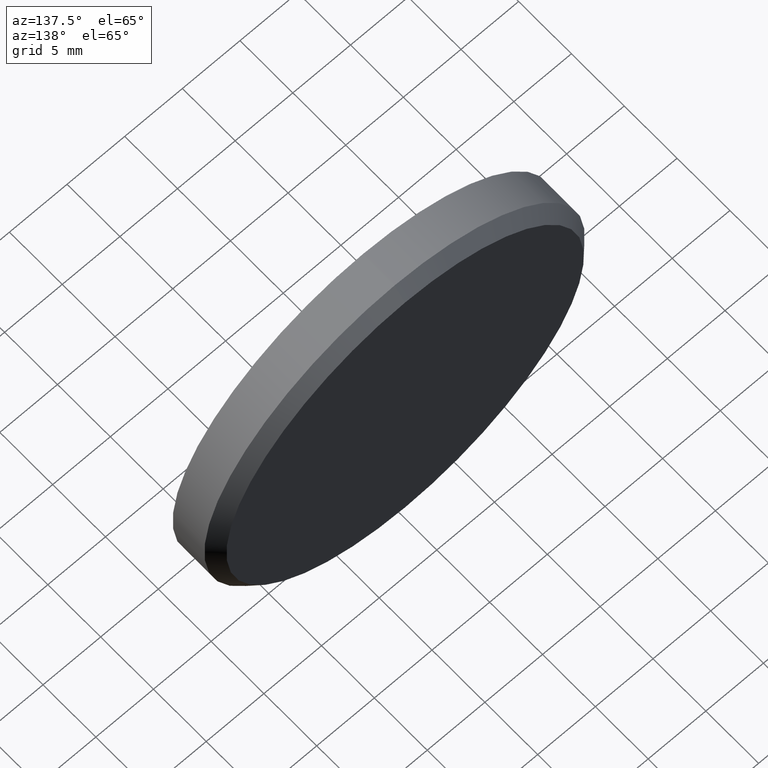
[diagram: clean part render]
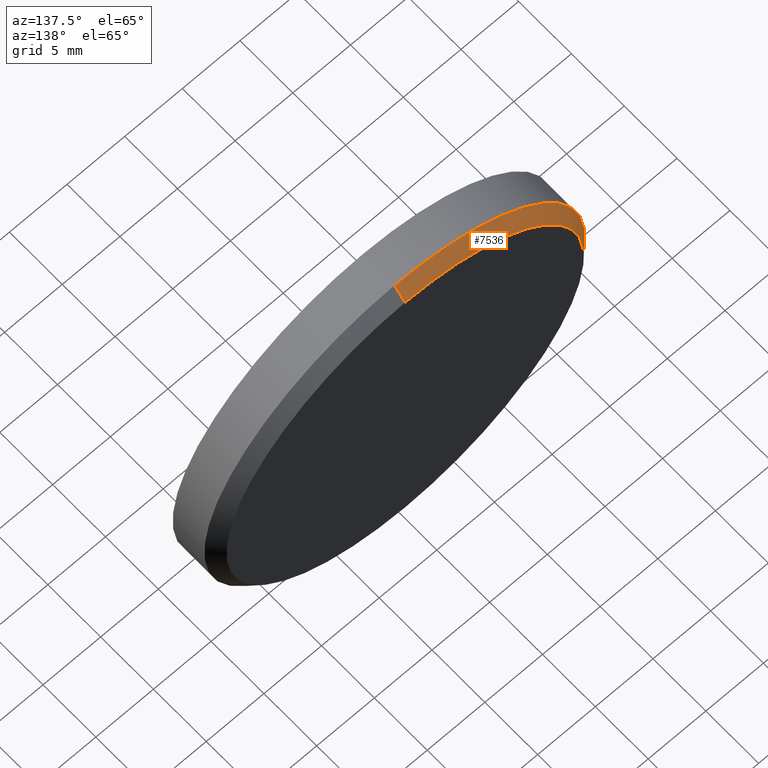
[diagram: same view with one face highlighted and labeled with its STEP entity id]
A machine part, auxiliary view. The second image highlights one B-rep face of the part: STEP entity #7536.
In plain terms, the highlighted conical surface has half-angle 45 deg.
Its self-contained STEP definition (entity closure, byte-faithful):
#460 = VECTOR ( 'NONE', #12190, 1000.000000000000114 ) ;
#707 = CARTESIAN_POINT ( 'NONE',  ( 2.020667218593133100E-15, 0.9999999999999922284, 16.50000000000000000 ) ) ;
#1696 = AXIS2_PLACEMENT_3D ( 'NONE', #13502, #13355, #14630 ) ;
#2034 = VERTEX_POINT ( 'NONE', #3483 ) ;
#2535 = CARTESIAN_POINT ( 'NONE',  ( 0.000000000000000000, 2.000000000000000000, -15.50000000000000000 ) ) ;
#2609 = ORIENTED_EDGE ( 'NONE', *, *, #11316, .T. ) ;
#3166 = CIRCLE ( 'NONE', #11136, 15.50000000000000000 ) ;
#3304 = CONICAL_SURFACE ( 'NONE', #10540, 15.50000000000000000, 0.7853981633974447263 ) ;
#3483 = CARTESIAN_POINT ( 'NONE',  ( 0.000000000000000000, 2.000000000000000000, -15.50000000000000000 ) ) ;
#4475 = ORIENTED_EDGE ( 'NONE', *, *, #4967, .F. ) ;
#4833 = VERTEX_POINT ( 'NONE', #10451 ) ;
#4967 = EDGE_CURVE ( 'NONE', #7832, #10124, #14922, .T. ) ;
#5102 = EDGE_CURVE ( 'NONE', #2034, #4833, #3166, .T. ) ;
#5558 = ORIENTED_EDGE ( 'NONE', *, *, #12218, .F. ) ;
#7536 = ADVANCED_FACE ( 'NONE', ( #12799 ), #3304, .T. ) ;
#7832 = VERTEX_POINT ( 'NONE', #707 ) ;
#8431 = DIRECTION ( 'NONE',  ( 0.000000000000000000, 0.000000000000000000, -1.000000000000000000 ) ) ;
#8932 = LINE ( 'NONE', #14742, #11793 ) ;
#9045 = CARTESIAN_POINT ( 'NONE',  ( 0.000000000000000000, 2.000000000000000000, 0.000000000000000000 ) ) ;
#9440 = EDGE_LOOP ( 'NONE', ( #5558, #13947, #2609, #4475 ) ) ;
#10124 = VERTEX_POINT ( 'NONE', #14463 ) ;
#10272 = DIRECTION ( 'NONE',  ( 0.000000000000000000, 1.000000000000000000, 0.000000000000000000 ) ) ;
#10451 = CARTESIAN_POINT ( 'NONE',  ( 1.959434878635765526E-15, 2.000000000000000000, 15.50000000000000000 ) ) ;
#10540 = AXIS2_PLACEMENT_3D ( 'NONE', #12232, #12182, #8431 ) ;
#11136 = AXIS2_PLACEMENT_3D ( 'NONE', #9045, #10272, #11490 ) ;
#11316 = EDGE_CURVE ( 'NONE', #2034, #10124, #15029, .T. ) ;
#11490 = DIRECTION ( 'NONE',  ( 0.000000000000000000, 0.000000000000000000, 1.000000000000000000 ) ) ;
#11793 = VECTOR ( 'NONE', #14895, 1000.000000000000114 ) ;
#12182 = DIRECTION ( 'NONE',  ( 0.000000000000000000, -1.000000000000000000, 0.000000000000000000 ) ) ;
#12190 = DIRECTION ( 'NONE',  ( 0.000000000000000000, -0.7071067811865500152, -0.7071067811865451302 ) ) ;
#12218 = EDGE_CURVE ( 'NONE', #4833, #7832, #8932, .T. ) ;
#12232 = CARTESIAN_POINT ( 'NONE',  ( 0.000000000000000000, 2.000000000000000000, 0.000000000000000000 ) ) ;
#12799 = FACE_OUTER_BOUND ( 'NONE', #9440, .T. ) ;
#13355 = DIRECTION ( 'NONE',  ( 0.000000000000000000, -1.000000000000000000, 0.000000000000000000 ) ) ;
#13502 = CARTESIAN_POINT ( 'NONE',  ( 0.000000000000000000, 0.9999999999999922284, 0.000000000000000000 ) ) ;
#13947 = ORIENTED_EDGE ( 'NONE', *, *, #5102, .F. ) ;
#14463 = CARTESIAN_POINT ( 'NONE',  ( 0.000000000000000000, 0.9999999999999922284, -16.50000000000000000 ) ) ;
#14630 = DIRECTION ( 'NONE',  ( 0.000000000000000000, 0.000000000000000000, 1.000000000000000000 ) ) ;
#14742 = CARTESIAN_POINT ( 'NONE',  ( 1.898202538678397557E-15, 2.000000000000000000, 15.50000000000000000 ) ) ;
#14895 = DIRECTION ( 'NONE',  ( 8.659560562354903276E-17, -0.7071067811865500152, 0.7071067811865451302 ) ) ;
#14922 = CIRCLE ( 'NONE', #1696, 16.50000000000000000 ) ;
#15029 = LINE ( 'NONE', #2535, #460 ) ;